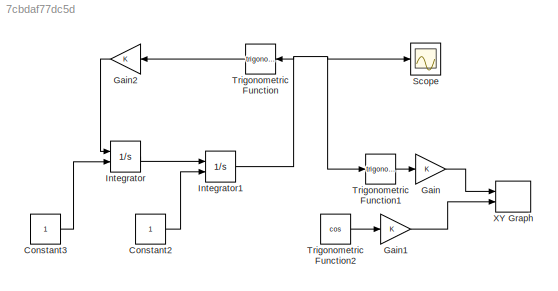
MODEL slx_7cbdaf77dc5d
KIND model
CONFIG AbsTol = auto
CONFIG EnableMultiTasking = off
CONFIG FixedStep = auto
CONFIG MaxStep = auto
CONFIG MinStep = auto
CONFIG RelTol = 1e-3
CONFIG SampleTimeConstraint = Unconstrained
CONFIG SolverName = VariableStepAuto
CONFIG StartTime = 0.0
CONFIG StopTime = 10.0
BLOCK [Constant] Constant2
BLOCK [Constant] Constant3
BLOCK [Gain] Gain
BLOCK [Gain] Gain1
BLOCK [Gain] Gain2
  NameLocation = top
BLOCK [Integrator] Integrator
  InitialConditionSource = external
  Ports = [2, 1]
BLOCK [Integrator] Integrator1
  InitialConditionSource = external
  Ports = [2, 1]
BLOCK [Scope] Scope
  Floating = off
  NumInputPorts = 1
  Ports = [1]
  ScopeSpecificationString = Simulink.scopes.TimeScopeBlockCfg('CurrentConfiguration', extmgr.ConfigurationSet(extmgr.Configuration('Core','General UI',true),extmgr.Configuration('Core','Source UI',true),extmgr.Configuration('Sources','WiredSimulink',true),extmgr.Configuration('Visuals','Time Domain',true),extmgr.Configuration('Tools','Plot Navigation',true),extmgr.Configuration('Tools','Measurements',true)),'Version','2022a'...<+1ch>
BLOCK [Trigonometry] Trigonometric Function
  NameLocation = top
  Ports = [1, 1]
BLOCK [Trigonometry] Trigonometric Function1
  Ports = [1, 1]
BLOCK [Trigonometry] Trigonometric Function2
  Operator = cos
  Ports = [1, 1]
BLOCK [Record] XY Graph
  CompatibilityTag = XY
  FileSettingsInternal = {"entries":[{"content":{"excelSettings":{"content":{},"type":"Streamout.ExcelSettings"}},"type":"Streamout.FileSettingStorage","uuid":"c281c875-2455-46b4-b612-08c43c0b9a6f"}],"packageUris":["http://schema.mathworks.com/mf0/streamout_blocks/R2020a"],"version":"1.0"}
  Layout = [1 1]
  Ports = [2]
  SignalsInternal = {"entries":[{"content":{"signals":[{"content":{"blockPath":["untitled1/XY Graph"],"channel":[],"dimensions":[1],"domain":"untitled1/XY Graph","lineColor":"#a2142f","plots":[1],"port":1,"sid":[],"signalID":54,"signalName":"XY Graph:1"},"type":"RecordBlkView.Signal","uuid":"9b37b040-ec27-4abe-ae00-4ad27a288828"},{"content":{"blockPath":["untitled1/XY Graph"],"channel":[],"dimensions":[1],"domain":"u...<+365ch>
  VisualizationBindings = {"xyplotplugin":{"info":[{"series":[{"bindingParametersList":[{"parameter":"X-Axis","signalID":54,"signalName":"XY Graph:1"},{"parameter":"Y-Axis","signalID":57,"signalName":"XY Graph:2"}],"seriesID":44716}],"subplotID":1}]}}
LINE Constant2:1 -> Integrator1:2
LINE Constant3:1 -> Integrator:2
LINE Gain1:1 -> XY Graph:2
LINE Gain2:1 -> Integrator:1
LINE Gain:1 -> XY Graph:1
NET Integrator1:1 -> Scope:1, Trigonometric Function1:1, Trigonometric Function:1
LINE Integrator:1 -> Integrator1:1
LINE Trigonometric Function1:1 -> Gain:1
LINE Trigonometric Function2:1 -> Gain1:1
LINE Trigonometric Function:1 -> Gain2:1
note: NET lines group one-source signal fan-out (src -> all destinations, sorted); 1:1 wires keep LINE
